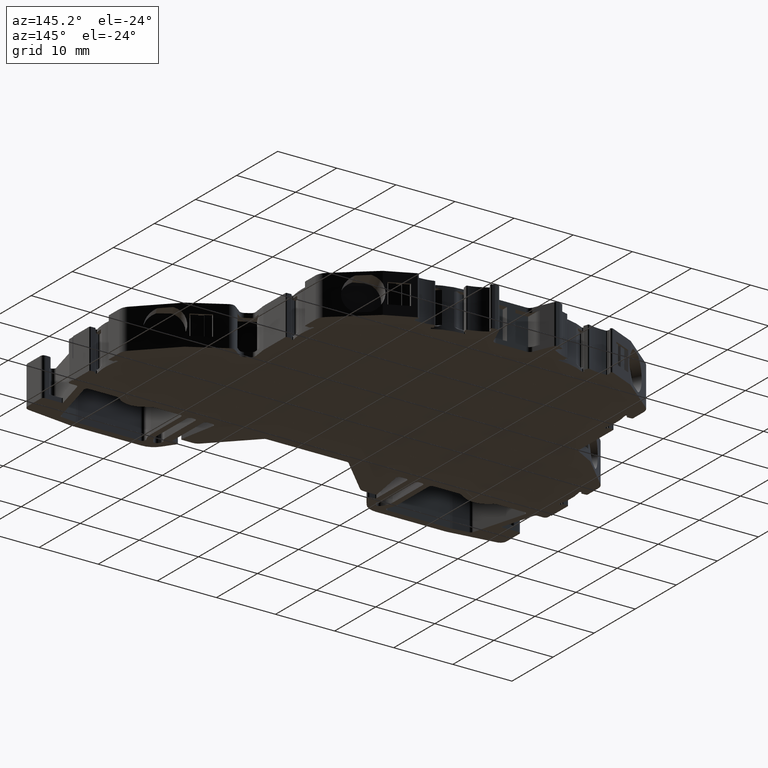
[diagram: clean part render]
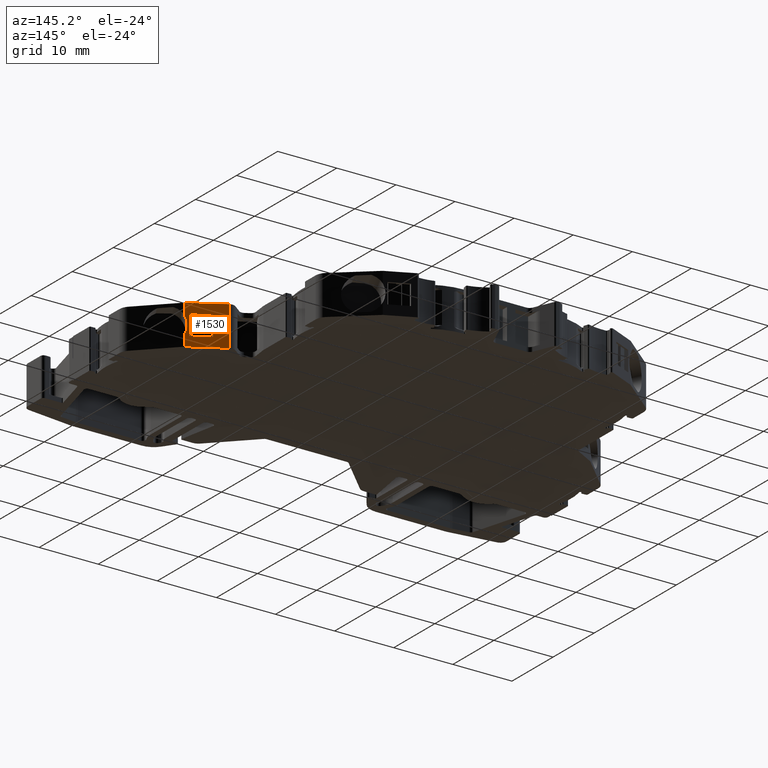
[diagram: same view with one face highlighted and labeled with its STEP entity id]
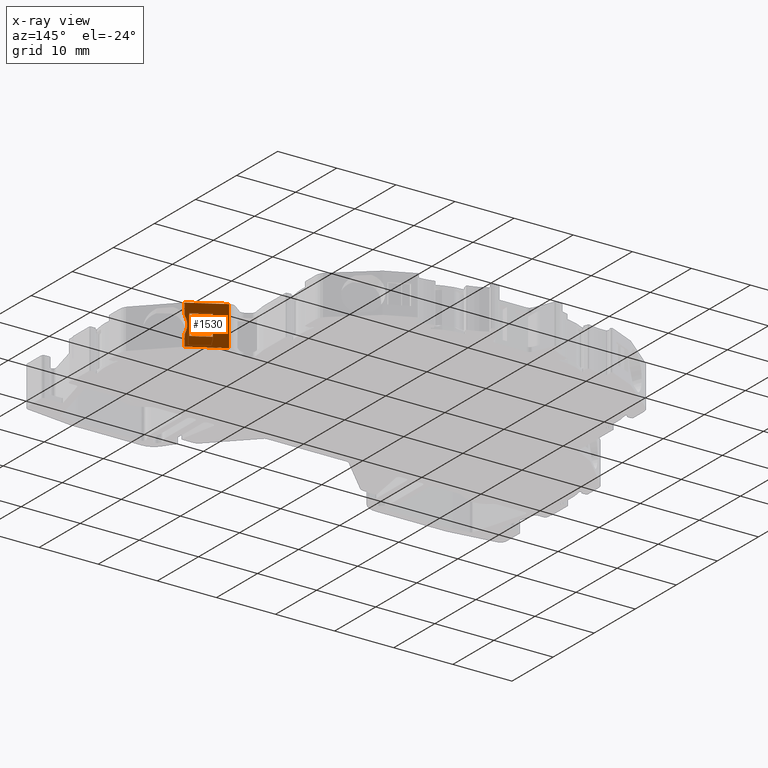
[diagram: x-ray of the same camera — body ghosted, the highlighted face saturated]
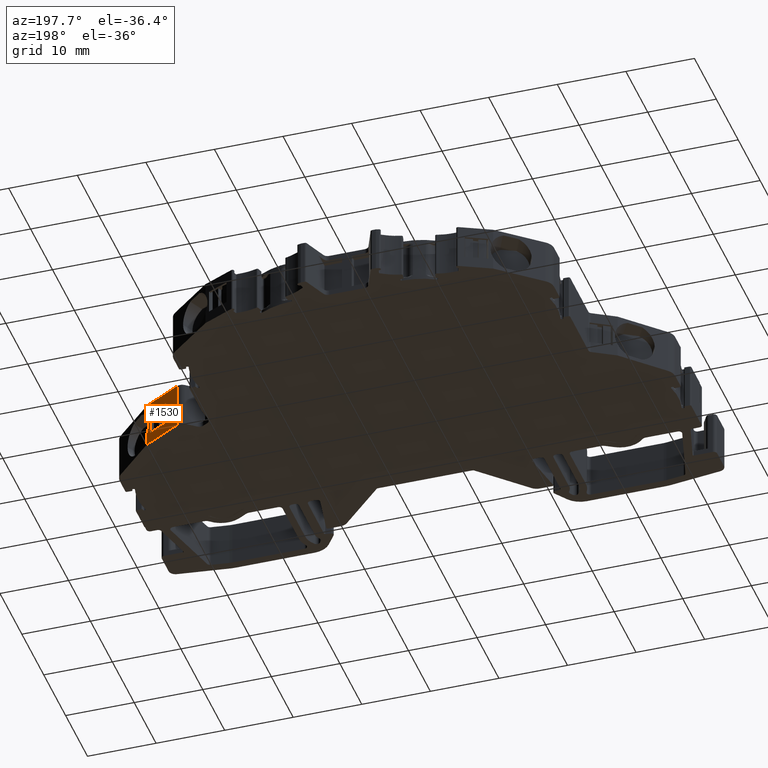
[diagram: same view with one face highlighted and labeled with its STEP entity id]
A machine part, auxiliary view. The second image highlights one B-rep face of the part: STEP entity #1530.
The next image is the same camera in x-ray: the body ghosted, the highlighted face saturated — about 0% of this face is hidden behind the body in this view.
A second angle (auxiliary view) of the same face is appended — the face is thin or edge-on in the first view.
In plain terms, the highlighted planar face has unit normal (0.5, 0.866, -0).
Its self-contained STEP definition (entity closure, byte-faithful):
#1164 = EDGE_CURVE ( 'NONE', #22615, #22495, #13912, .T. ) ;
#1218 = EDGE_CURVE ( 'NONE', #22495, #22586, #14315, .T. ) ;
#1242 = EDGE_CURVE ( 'NONE', #22589, #22528, #14468, .T. ) ;
#1256 = EDGE_CURVE ( 'NONE', #22528, #22604, #13655, .T. ) ;
#1530 = ADVANCED_FACE ( 'NONE', ( #5523, #5520 ), #5563, .T. ) ;
#3637 = ORIENTED_EDGE ( 'NONE', *, *, #27909, .T. ) ;
#3638 = ORIENTED_EDGE ( 'NONE', *, *, #27876, .T. ) ;
#3640 = ORIENTED_EDGE ( 'NONE', *, *, #28249, .T. ) ;
#3642 = ORIENTED_EDGE ( 'NONE', *, *, #28253, .T. ) ;
#3649 = ORIENTED_EDGE ( 'NONE', *, *, #1256, .T. ) ;
#3653 = ORIENTED_EDGE ( 'NONE', *, *, #1242, .T. ) ;
#5520 = FACE_OUTER_BOUND ( 'NONE', #23153, .T. ) ;
#5523 = FACE_BOUND ( 'NONE', #23159, .T. ) ;
#5563 = PLANE ( 'NONE',  #10421 ) ;
#5564 = CARTESIAN_POINT ( 'NONE',  ( 524.6342102815265200, -327.2915580187767500, -153.4747097562271600 ) ) ;
#5567 = DIRECTION ( 'NONE',  ( 0.4999999999999192900, 0.8660254037844852300, -0.0000000000000000000 ) ) ;
#5568 = DIRECTION ( 'NONE',  ( -0.8660254037844852300, 0.4999999999999192900, 0.0000000000000000000 ) ) ;
#6552 = LINE ( 'NONE', #6561, #10917 ) ;
#6560 = CARTESIAN_POINT ( 'NONE',  ( 524.6342102815265200, -327.2915580187767500, -58.69999999999994600 ) ) ;
#6561 = CARTESIAN_POINT ( 'NONE',  ( 524.6342102815265200, -327.2915580187767500, -55.29999999999996200 ) ) ;
#6567 = DIRECTION ( 'NONE',  ( 0.8660254037844852300, -0.4999999999999192900, -0.0000000000000000000 ) ) ;
#6589 = LINE ( 'NONE', #6560, #11001 ) ;
#6600 = DIRECTION ( 'NONE',  ( -0.8660254037844852300, 0.4999999999999192900, 0.0000000000000000000 ) ) ;
#6660 = LINE ( 'NONE', #6687, #9124 ) ;
#6687 = CARTESIAN_POINT ( 'NONE',  ( 520.0156648857573600, -324.6250395912654200, -153.4747097562271600 ) ) ;
#6707 = DIRECTION ( 'NONE',  ( 0.0000000000000000000, 0.0000000000000000000, 1.000000000000000000 ) ) ;
#7583 = DIRECTION ( 'NONE',  ( -0.0000000000000000000, -0.0000000000000000000, -1.000000000000000000 ) ) ;
#7621 = LINE ( 'NONE', #7625, #9219 ) ;
#7625 = CARTESIAN_POINT ( 'NONE',  ( 517.1567390074353600, -322.9744379658233700, -153.4747097562271600 ) ) ;
#7634 = CARTESIAN_POINT ( 'NONE',  ( 522.8724886465329300, -326.2744275585768600, -57.00000000000000000 ) ) ;
#7640 = DIRECTION ( 'NONE',  ( -0.4999999999999781800, -0.8660254037844512500, 0.0000000000000000000 ) ) ;
#7666 = DIRECTION ( 'NONE',  ( 0.8660254037844556900, -0.4999999999999705200, 0.0000000000000000000 ) ) ;
#7766 = LINE ( 'NONE', #7782, #9257 ) ;
#7782 = CARTESIAN_POINT ( 'NONE',  ( 515.2167794882169600, -321.8544018151859500, -153.4747097562271600 ) ) ;
#7784 = DIRECTION ( 'NONE',  ( 0.0000000000000000000, 0.0000000000000000000, 1.000000000000000000 ) ) ;
#9124 = VECTOR ( 'NONE', #6707, 1000.000000000000000 ) ;
#9181 = CIRCLE ( 'NONE', #9220, 3.000020291291826300 ) ;
#9219 = VECTOR ( 'NONE', #7583, 1000.000000000000000 ) ;
#9220 = AXIS2_PLACEMENT_3D ( 'NONE', #7634, #7640, #7666 ) ;
#9257 = VECTOR ( 'NONE', #7784, 1000.000000000000000 ) ;
#10421 = AXIS2_PLACEMENT_3D ( 'NONE', #5564, #5567, #5568 ) ;
#10917 = VECTOR ( 'NONE', #6600, 1000.000000000000100 ) ;
#11001 = VECTOR ( 'NONE', #6567, 1000.000000000000100 ) ;
#11948 = CARTESIAN_POINT ( 'NONE',  ( 520.0156648857572500, -324.6250395912659300, -58.69999999999998200 ) ) ;
#12887 = CARTESIAN_POINT ( 'NONE',  ( 520.5939134409254600, -324.9588915502502000, -53.64999999999990600 ) ) ;
#12906 = CARTESIAN_POINT ( 'NONE',  ( 520.5939134409254600, -324.9588915502502000, -60.34999999999997300 ) ) ;
#12984 = CARTESIAN_POINT ( 'NONE',  ( 520.0156648857574700, -324.6250395912659900, -55.30000000000000400 ) ) ;
#13003 = CARTESIAN_POINT ( 'NONE',  ( 515.2167794882169600, -321.8544018151859500, -60.34999999999998700 ) ) ;
#13024 = CARTESIAN_POINT ( 'NONE',  ( 520.5939134409261400, -324.9588915502508300, -55.55861809663304000 ) ) ;
#13050 = CARTESIAN_POINT ( 'NONE',  ( 517.1567390074353600, -322.9744379658235400, -55.30000000000000400 ) ) ;
#13052 = CARTESIAN_POINT ( 'NONE',  ( 520.5939134409261400, -324.9588915502508300, -58.44138190336688900 ) ) ;
#13118 = CARTESIAN_POINT ( 'NONE',  ( 515.2167794882169600, -321.8544018151859500, -53.64999999999994900 ) ) ;
#13120 = CARTESIAN_POINT ( 'NONE',  ( 517.1567390074353600, -322.9744379658235400, -58.69999999999998900 ) ) ;
#13655 = LINE ( 'NONE', #13678, #26337 ) ;
#13678 = CARTESIAN_POINT ( 'NONE',  ( 524.6342102815265200, -327.2915580187767500, -60.34999999999995900 ) ) ;
#13679 = DIRECTION ( 'NONE',  ( -0.8660254037844852300, 0.4999999999999192900, 0.0000000000000000000 ) ) ;
#13883 = DIRECTION ( 'NONE',  ( 0.8660254037844852300, -0.4999999999999192900, -0.0000000000000000000 ) ) ;
#13912 = LINE ( 'NONE', #13971, #26787 ) ;
#13971 = CARTESIAN_POINT ( 'NONE',  ( 524.6342102815265200, -327.2915580187767500, -53.64999999999989200 ) ) ;
#14300 = CARTESIAN_POINT ( 'NONE',  ( 520.5939134409263700, -324.9588915502507100, -153.4747097562271600 ) ) ;
#14311 = DIRECTION ( 'NONE',  ( -0.0000000000000000000, -0.0000000000000000000, -1.000000000000000000 ) ) ;
#14315 = LINE ( 'NONE', #14300, #26280 ) ;
#14448 = CARTESIAN_POINT ( 'NONE',  ( 520.5939134409263700, -324.9588915502507100, -153.4747097562271600 ) ) ;
#14460 = DIRECTION ( 'NONE',  ( -0.0000000000000000000, -0.0000000000000000000, -1.000000000000000000 ) ) ;
#14468 = LINE ( 'NONE', #14448, #26332 ) ;
#22495 = VERTEX_POINT ( 'NONE', #12887 ) ;
#22528 = VERTEX_POINT ( 'NONE', #12906 ) ;
#22581 = VERTEX_POINT ( 'NONE', #12984 ) ;
#22585 = VERTEX_POINT ( 'NONE', #13050 ) ;
#22586 = VERTEX_POINT ( 'NONE', #13024 ) ;
#22589 = VERTEX_POINT ( 'NONE', #13052 ) ;
#22604 = VERTEX_POINT ( 'NONE', #13003 ) ;
#22615 = VERTEX_POINT ( 'NONE', #13118 ) ;
#22620 = VERTEX_POINT ( 'NONE', #13120 ) ;
#22694 = VERTEX_POINT ( 'NONE', #11948 ) ;
#23153 = EDGE_LOOP ( 'NONE', ( #3653, #3649, #25031, #24962, #24993, #3642 ) ) ;
#23159 = EDGE_LOOP ( 'NONE', ( #3637, #25022, #3640, #3638 ) ) ;
#24962 = ORIENTED_EDGE ( 'NONE', *, *, #1164, .T. ) ;
#24993 = ORIENTED_EDGE ( 'NONE', *, *, #1218, .T. ) ;
#25022 = ORIENTED_EDGE ( 'NONE', *, *, #27881, .T. ) ;
#25031 = ORIENTED_EDGE ( 'NONE', *, *, #28295, .T. ) ;
#26280 = VECTOR ( 'NONE', #14311, 1000.000000000000000 ) ;
#26332 = VECTOR ( 'NONE', #14460, 1000.000000000000000 ) ;
#26337 = VECTOR ( 'NONE', #13679, 1000.000000000000100 ) ;
#26787 = VECTOR ( 'NONE', #13883, 1000.000000000000100 ) ;
#27876 = EDGE_CURVE ( 'NONE', #22620, #22694, #6589, .T. ) ;
#27881 = EDGE_CURVE ( 'NONE', #22581, #22585, #6552, .T. ) ;
#27909 = EDGE_CURVE ( 'NONE', #22694, #22581, #6660, .T. ) ;
#28249 = EDGE_CURVE ( 'NONE', #22585, #22620, #7621, .T. ) ;
#28253 = EDGE_CURVE ( 'NONE', #22586, #22589, #9181, .T. ) ;
#28295 = EDGE_CURVE ( 'NONE', #22604, #22615, #7766, .T. ) ;